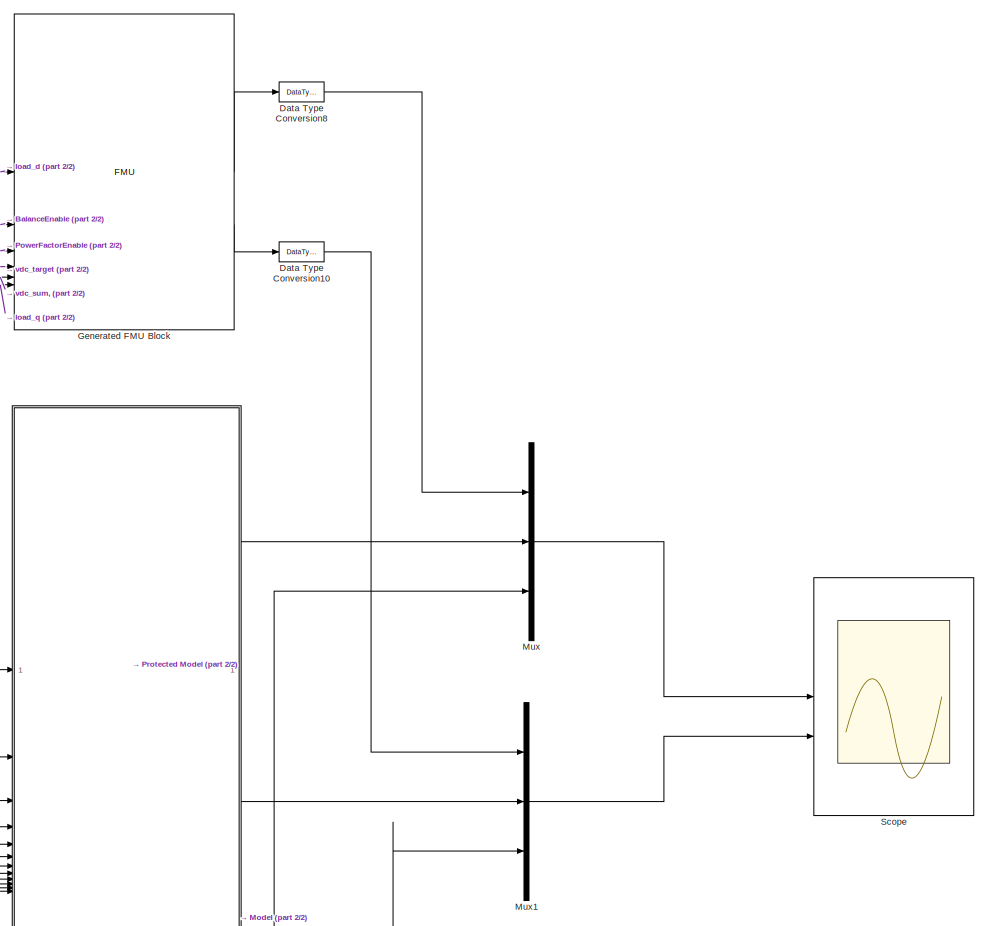
[diagram: root canvas - part 1/2, top right region]
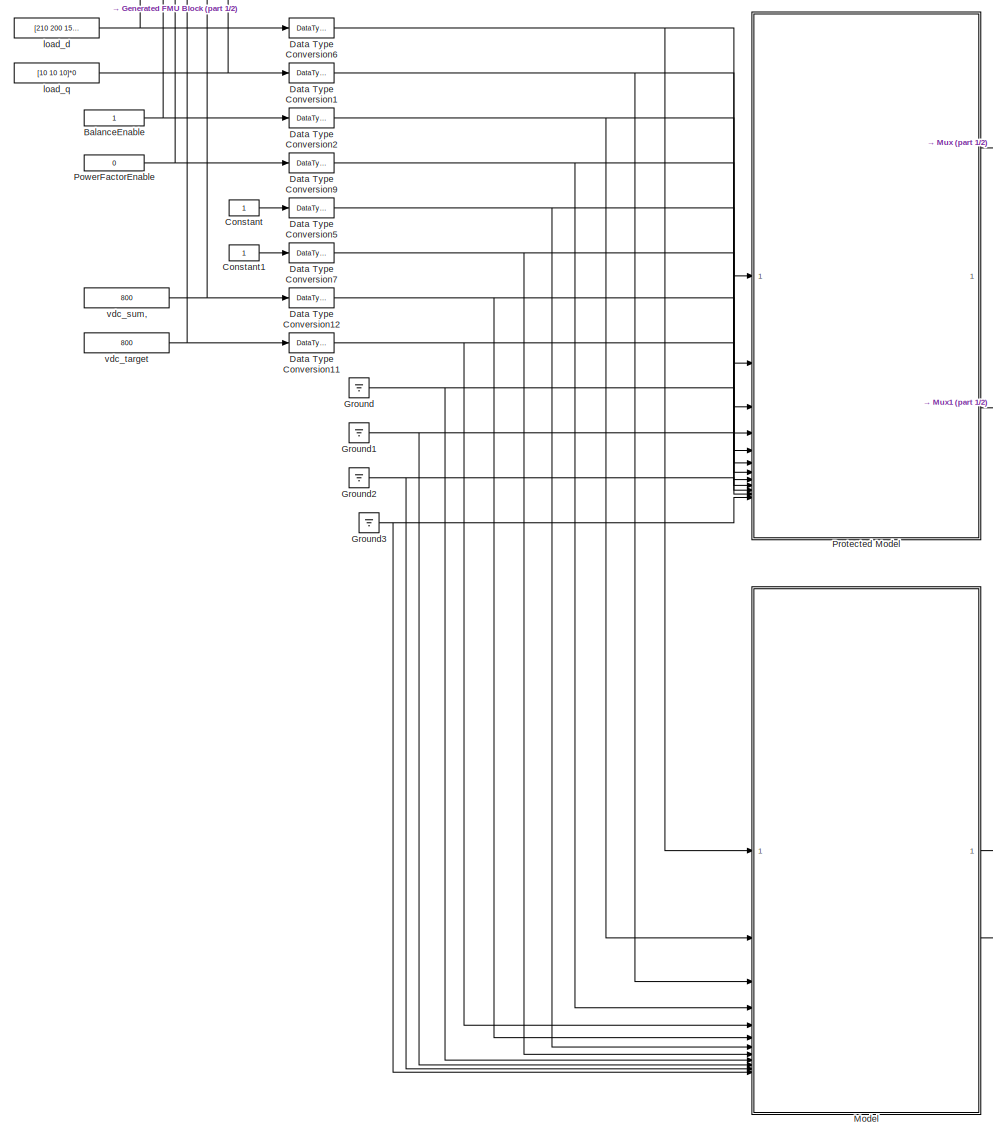
[diagram: root canvas - part 2/2, left side, full height]
MODEL slx_98fd4ba8c45e
KIND model
BLOCK [Constant] BalanceEnable
  OutDataTypeStr = int32
BLOCK [Constant] Constant
  OutDataTypeStr = int32
BLOCK [Constant] Constant1
  OutDataTypeStr = int32
BLOCK [DataTypeConversion] Data Type Conversion1
  RndMeth = Floor
  SaturateOnIntegerOverflow = off
BLOCK [DataTypeConversion] Data Type Conversion10
  OutDataTypeStr = single
  RndMeth = Floor
  SaturateOnIntegerOverflow = off
BLOCK [DataTypeConversion] Data Type Conversion11
  RndMeth = Floor
  SaturateOnIntegerOverflow = off
BLOCK [DataTypeConversion] Data Type Conversion12
  RndMeth = Floor
  SaturateOnIntegerOverflow = off
BLOCK [DataTypeConversion] Data Type Conversion2
  RndMeth = Floor
  SaturateOnIntegerOverflow = off
BLOCK [DataTypeConversion] Data Type Conversion5
  RndMeth = Floor
  SaturateOnIntegerOverflow = off
BLOCK [DataTypeConversion] Data Type Conversion6
  RndMeth = Floor
  SaturateOnIntegerOverflow = off
BLOCK [DataTypeConversion] Data Type Conversion7
  RndMeth = Floor
  SaturateOnIntegerOverflow = off
BLOCK [DataTypeConversion] Data Type Conversion8
  OutDataTypeStr = single
  RndMeth = Floor
  SaturateOnIntegerOverflow = off
BLOCK [DataTypeConversion] Data Type Conversion9
  RndMeth = Floor
  SaturateOnIntegerOverflow = off
BLOCK [FMU] Generated FMU Block
  FMUCachedDialogLayout = {"Geometry":[1006,157,433,389],"ParameterColumnsWidthConfig":"{\"columns\":[{\"name\":\"Parameter\",\"width\":145},{\"name\":\"Value\",\"width\":116},{\"name\":\"Unit\",\"width\":108},{\"name\":\"Description\",\"width\":152}]}","InputColumnsWidthConfig":[],"OutputColumnsWidthConfig":[]}
  FMUCreateBusObject = off
  FMUInitializeEnumObject = off
  FMUMode = CoSimulation
  FMUName = SH_control
  FMUSampleTime = ctrl_tsk_st
  MaskDisplay = if (exist([Simulink.fileGenControl('get','CacheFolder') '\slprj\_fmu\503b9df410b1ade17a0ae727d911ce13\SH_control\model.png'],'file'))\n    image([Simulink.fileGenControl('get','CacheFolder') '\slprj\_fmu\503b9df410b1ade17a0ae727d911ce13\SH_control\model.png']);\nelse\n    disp('SH_control');\nend\nport_label('output',1,'volt_req_d');\nport_label('output',2,'vol_req_q');\nport_label('input',1,'LD_current_...<+472ch>
  MaskType = SH_control [Co-Simulation, v2.0]
BLOCK [Ground] Ground
BLOCK [Ground] Ground1
BLOCK [Ground] Ground2
BLOCK [Ground] Ground3
BLOCK [ModelReference] Model
  ModelNameDialog = SH_core_control.slx
  ModelReferenceVersion = 1.59
  PortSchema = {"entries":[{"content":{"sides":[{"content":{"connectorIds":["In1","In3","In2","In4","In7","In8","In6","In5","In9","In10","In11","In12","In13","In14","In15","In16","In17","In18","In19"]},"type":"ConnectorPlacement.EquallySpacedRectSide","uuid":"23c75067-9470-41eb-93ec-30ae2c10cb0d"},{"content":{"connectorIds":["Out1","Out2"],"side":"RIGHT"},"type":"ConnectorPlacement.EquallySpacedRectSide","uuid":...<+347ch>
BLOCK [Mux] Mux
  DisplayOption = bar
  Inputs = 3
BLOCK [Mux] Mux1
  DisplayOption = bar
  Inputs = 3
BLOCK [Constant] PowerFactorEnable
  OutDataTypeStr = int32
  Value = 0
BLOCK [ModelReference] Protected Model
  CopyOfModelProtected = on
  ModelNameDialog = SH_core_control_protected.slxp
  ModelReferenceVersion = 1.55
  PortSchema = {"entries":[{"content":{"sides":[{"content":{"connectorIds":["In1","In3","In2","In4","In7","In8","In6","In5","In9","In10","In11","In12","In13","In14","In15","In16","In17","In18","In19"]},"type":"ConnectorPlacement.EquallySpacedRectSide","uuid":"23c75067-9470-41eb-93ec-30ae2c10cb0d"},{"content":{"connectorIds":["Out1","Out2"],"side":"RIGHT"},"type":"ConnectorPlacement.EquallySpacedRectSide","uuid":...<+347ch>
BLOCK [Scope] Scope
  Floating = off
  NumInputPorts = 2
  ScopeSpecificationString = Simulink.scopes.TimeScopeBlockCfg('CurrentConfiguration', extmgr.ConfigurationSet(extmgr.Configuration('Core','General UI',true),extmgr.Configuration('Core','Source UI',true),extmgr.Configuration('Sources','WiredSimulink',true),extmgr.Configuration('Visuals','Time Domain',true,'SerializedDisplays',{struct('MinYLimReal','-30.78409','MaxYLimReal','44.21578','YLabelReal','','MinYLimMag','0.00000','Ma...<+1982ch>
BLOCK [Constant] load_d
  OutDataTypeStr = double
  Value = [210 200 150]
BLOCK [Constant] load_q
  OutDataTypeStr = double
  Value = [10 10 10]*0
BLOCK [Constant] vdc_sum,
  OutDataTypeStr = double
  Value = 800
BLOCK [Constant] vdc_target
  OutDataTypeStr = double
  Value = 800
NET BalanceEnable:1 -> Data Type Conversion2:1, Generated FMU Block:2
LINE Constant1:1 -> Data Type Conversion7:1
LINE Constant:1 -> Data Type Conversion5:1
LINE Data Type Conversion10:1 -> Mux1:1
NET Data Type Conversion11:1 -> Model:5, Protected Model:5
NET Data Type Conversion12:1 -> Model:6, Protected Model:6
NET Data Type Conversion1:1 -> Model:3, Protected Model:3
NET Data Type Conversion2:1 -> Model:2, Protected Model:2
NET Data Type Conversion5:1 -> Model:7, Protected Model:7
NET Data Type Conversion6:1 -> Model:1, Protected Model:1
NET Data Type Conversion7:1 -> Model:8, Protected Model:8
LINE Data Type Conversion8:1 -> Mux:1
NET Data Type Conversion9:1 -> Model:4, Protected Model:4
LINE Generated FMU Block:1 -> Data Type Conversion8:1
LINE Generated FMU Block:2 -> Data Type Conversion10:1
NET Ground1:1 -> Model:10, Protected Model:10
NET Ground2:1 -> Model:11, Protected Model:11
NET Ground3:1 -> Model:12, Protected Model:12
NET Ground:1 -> Model:9, Protected Model:9
LINE Model:1 -> Mux:3
LINE Model:2 -> Mux1:3
LINE Mux1:1 -> Scope:2
LINE Mux:1 -> Scope:1
NET PowerFactorEnable:1 -> Data Type Conversion9:1, Generated FMU Block:3
LINE Protected Model:1 -> Mux:2
LINE Protected Model:2 -> Mux1:2
NET load_d:1 -> Data Type Conversion6:1, Generated FMU Block:1
NET load_q:1 -> Data Type Conversion1:1, Generated FMU Block:6
NET vdc_sum,:1 -> Data Type Conversion12:1, Generated FMU Block:5
NET vdc_target:1 -> Data Type Conversion11:1, Generated FMU Block:4
note: NET lines group one-source signal fan-out (src -> all destinations, sorted); 1:1 wires keep LINE
